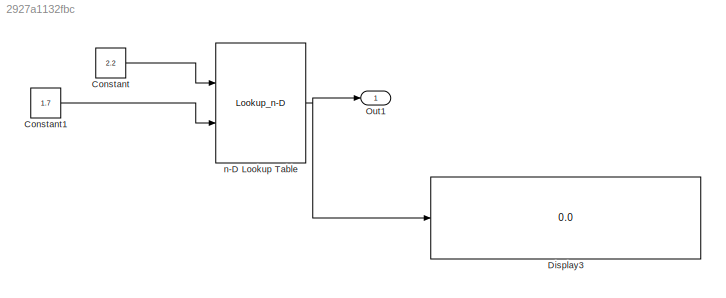
MODEL slx_2927a1132fbc
KIND model
CONFIG AbsTol = auto
CONFIG FixedStep = 0.2
CONFIG MaxStep = auto
CONFIG MinStep = auto
CONFIG RelTol = 1e-3
CONFIG SampleTimeConstraint = Unconstrained
CONFIG Solver = FixedStepDiscrete
CONFIG SolverMode = Auto
CONFIG SolverName = FixedStepDiscrete
CONFIG StartTime = 0.0
CONFIG StopTime = 10.0
BLOCK [Constant] Constant
  Value = 2.2
BLOCK [Constant] Constant1
  Value = 1.7
BLOCK [Display] Display3
  Decimation = 1
  Ports = [1]
BLOCK [Outport] Out1
  IconDisplay = Port number
BLOCK [Lookup_n-D] n-D Lookup Table
  BreakpointsForDimension1 = [1 2 3]
  BreakpointsForDimension2 = [0 1 2]
  BreakpointsForDimension3 = [5 6]
  InternalRulePriority = Speed
  InterpMethod = Cubic spline
  Ports = [2, 1]
  RndMeth = Simplest
  Table = [1 12 3; 14 5 6 ; 7 8 19]
LINE Constant1:1 -> n-D Lookup Table:2
LINE Constant:1 -> n-D Lookup Table:1
NET n-D Lookup Table:1 -> Display3:1, Out1:1
note: NET lines group one-source signal fan-out (src -> all destinations, sorted); 1:1 wires keep LINE
